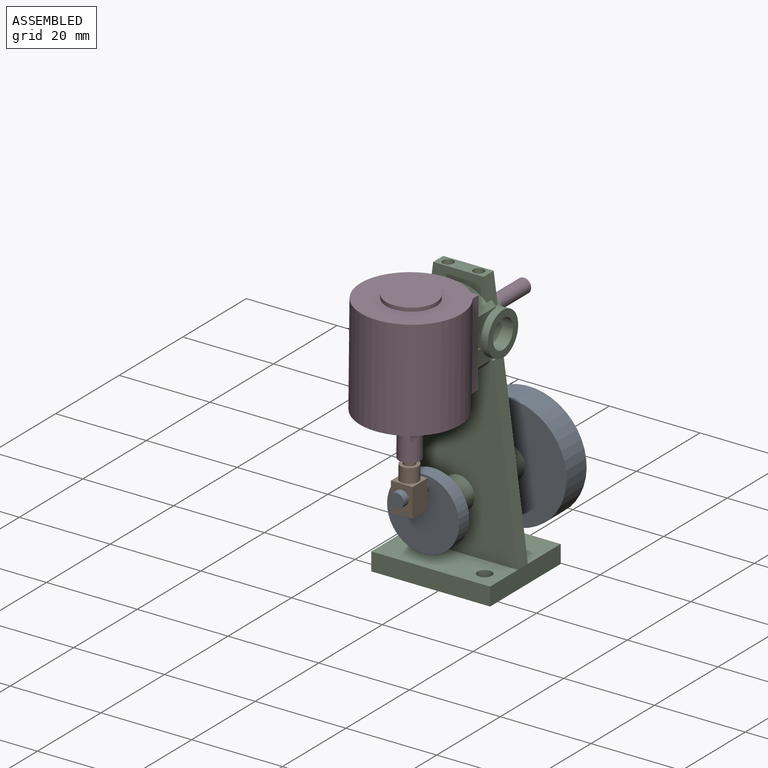
[diagram: assembled view]
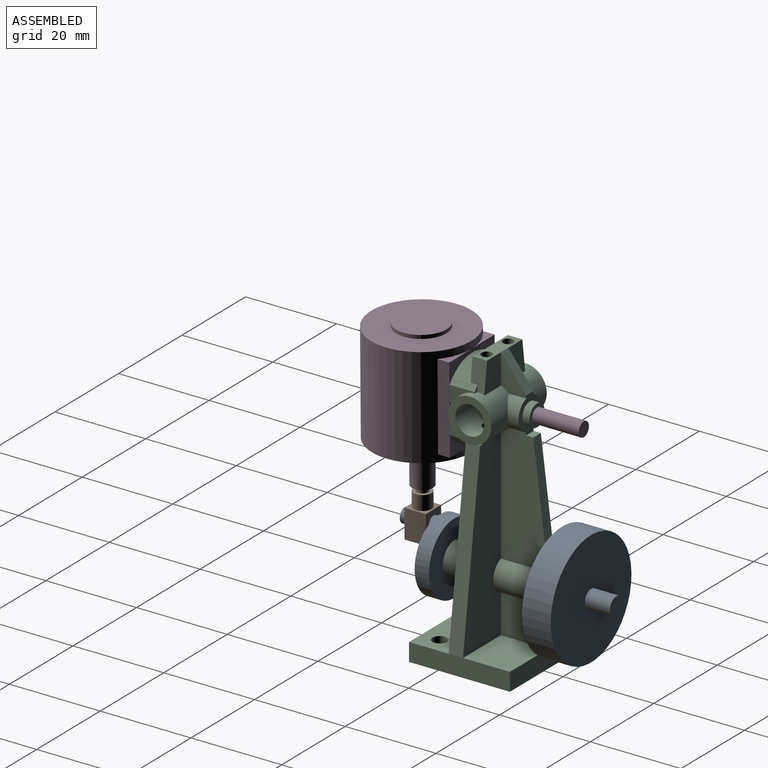
[diagram: assembled view, second angle]
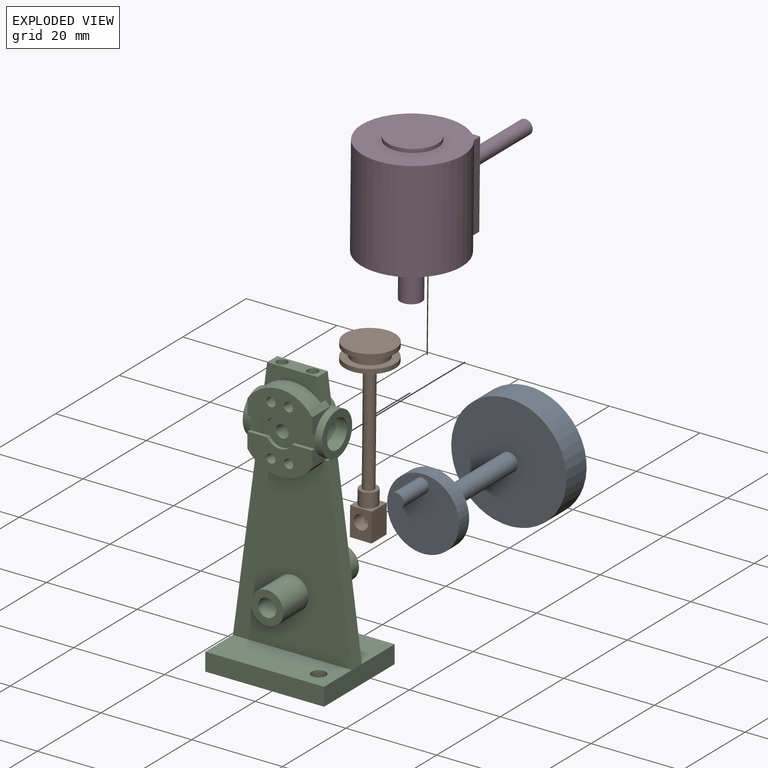
[diagram: exploded view]
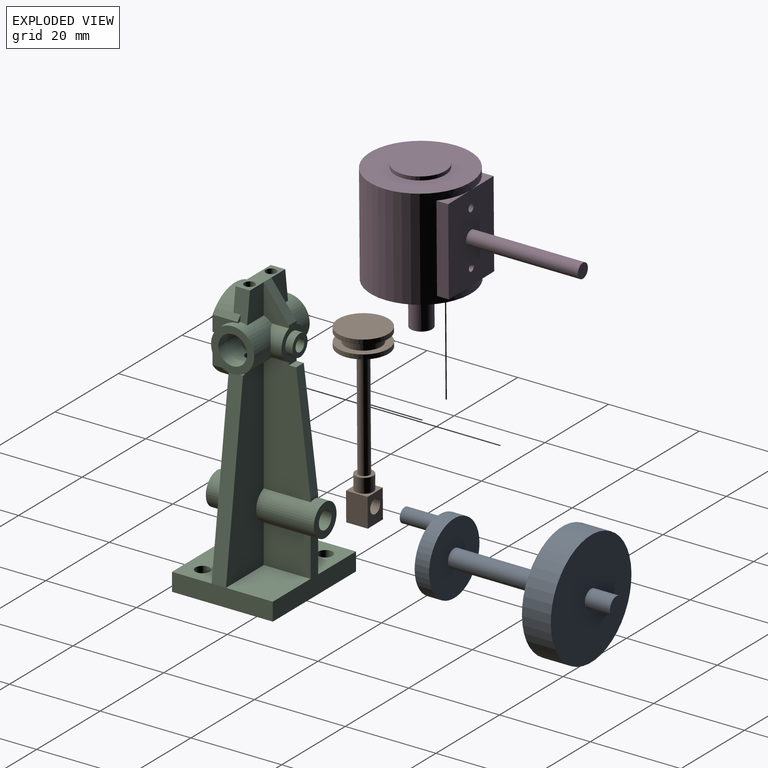
[diagram: exploded view, second angle]
ASSEMBLY  parts=4 mates=3
PART A: 11 faces, bbox 25.4x46.8x25.4 mm
  f0: cylinder r=1.98mm len=23.81mm, axis (0,1,0), area 296.9mm2, adj f3,f7
  f1: cylinder r=7.94mm len=15.88mm, axis (0,1,0), area 158.3mm2, adj f2,f3
  f2: plane 15.88x15.88mm, normal (0,-1,0), area 190mm2, adj f1,f4
  f3: plane 15.88x15.88mm, normal (0,1,0), area 185.6mm2, adj f0,f1
  f4: cylinder r=1.59mm len=7.94mm, axis (0,1,0), area 79.2mm2, adj f2,f5
  f5: plane 3.18x3.18mm, normal (0,-1,0), area 7.9mm2, adj f4
  f6: cylinder r=12.7mm len=25.4mm, axis (0,1,0), area 506.7mm2, adj f7,f8
  f7: plane 25.4x25.4mm, normal (0,-1,0), area 494.3mm2, adj f0,f6
  f8: plane 25.4x25.4mm, normal (0,1,0), area 494.3mm2, adj f6,f10
  f9: plane 3.97x3.97mm, normal (0,1,0), area 12.4mm2, adj f10
  f10: cylinder r=1.98mm len=5.56mm, axis (0,1,0), area 69.3mm2, adj f8,f9
PART B: 17 faces, bbox 11.1x11.1x38.9 mm
  f0: plane 6.35x4.76mm, normal (0,1,0), area 22.3mm2, adj f1,f3,f4,f5,f16
  f1: plane 6.35x4.76mm, normal (-1,0,0), area 30.2mm2, adj f0,f2,f4,f5
  f2: plane 6.35x4.76mm, normal (0,-1,0), area 22.3mm2, adj f1,f3,f4,f5,f16
  f3: plane 6.35x4.76mm, normal (1,0,0), area 30.2mm2, adj f0,f2,f4,f5
  f4: plane 4.76x4.76mm, normal (0,0,1), area 10.3mm2, adj f0,f1,f2,f3,f6
  f5: plane 4.76x4.76mm, normal (0,0,-1), area 22.7mm2, adj f0,f1,f2,f3
  f6: cylinder r=1.98mm len=3.97mm, axis (0,0,-1), area 39.6mm2, adj f4,f7
  f7: plane 3.97x3.97mm, normal (0,0,1), area 7.5mm2, adj f6,f8
  f8: cylinder r=1.24mm len=25.4mm, axis (0,0,-1), area 198.6mm2, adj f7,f11
  f9: cylinder r=5.56mm len=11.11mm, axis (0,0,-1), area 34.6mm2, adj f10,f15
  f10: plane 11.11x11.11mm, normal (0,0,1), area 97mm2, adj f9
  f11: plane 11.11x11.11mm, normal (0,0,-1), area 92.1mm2, adj f8,f12
  f12: cylinder r=5.56mm len=11.11mm, axis (0,0,-1), area 34.6mm2, adj f11,f13
  f13: plane 11.11x11.11mm, normal (0,0,1), area 47.5mm2, adj f12,f14
  f14: cylinder r=3.97mm len=7.94mm, axis (0,0,-1), area 49.5mm2, adj f13,f15
  f15: plane 11.11x11.11mm, normal (0,0,-1), area 47.5mm2, adj f9,f14
  f16: cylinder r=1.59mm len=4.76mm, axis (0,-1,0), area 47.5mm2, adj f0,f2
PART C: 89 faces, bbox 26.2x24.6x60.3 mm
  f0: cylinder r=3.57mm len=12.7mm, axis (0,-1,0), area 232.9mm2, adj f6,f9,f31,f43,f44,f45,f46,f47
  f1: cylinder r=1.98mm len=23.81mm, axis (0,-1,0), area 294.9mm2, adj f42,f43,f88
  f2: cylinder r=0.99mm len=4.13mm, axis (0,0,1), area 22.2mm2, adj f67,f81,f82,f86
  f3: cylinder r=0.99mm len=3.33mm, axis (0,0,1), area 17.4mm2, adj f4,f73,f77,f78,f84
  f4: cylinder r=0.99mm len=0.19mm, axis (0,0,1), area 0mm2, adj f3,f73,f77
  f5: plane 6.62x5.25mm, normal (0,1,0), area 31.8mm2, adj f17,f28,f39,f64
  f6: plane 40.75x11.91mm, normal (0,1,0), area 362.1mm2, adj f0,f24,f30,f44,f48,f61,f62,f64
  f7: plane 1.36x0.92mm, normal (0,1,0), area 0.6mm2, adj f14,f15,f17,f64
  f8: plane 6.62x5.25mm, normal (0,1,0), area 31.8mm2, adj f18,f27,f39,f65
  f9: plane 40.75x11.91mm, normal (0,1,0), area 362.1mm2, adj f0,f25,f29,f45,f47,f59,f60,f65
  f10: cylinder r=3.57mm len=6.74mm, axis (0,-1,0), area 25.8mm2, adj f28,f48,f51,f64
  f11: cylinder r=3.57mm len=6.74mm, axis (0,-1,0), area 25.8mm2, adj f27,f47,f51,f65
  f12: plane 1.36x0.92mm, normal (0,1,0), area 0.6mm2, adj f13,f15,f18,f65
  f13: plane 5.56x5.02mm, normal (1,0,0), area 8.8mm2, adj f12,f15,f16,f20,f56,f65
  f14: plane 5.56x5.02mm, normal (-1,0,0), area 8.8mm2, adj f7,f15,f16,f20,f21,f64
  f15: cylinder r=8.73mm len=14.29mm, axis (0,1,0), area 71mm2, adj f7,f12,f13,f14,f16,f17,f18,f26
  f16: plane 14.29x7.14mm, normal (0,-1,0), area 73.9mm2, adj f13,f14,f15,f21,f56,f58,f75,f81
  f17: plane 6.64x3.19mm, normal (-0.99,0,0.13), area 18.3mm2, adj f5,f7,f15,f26,f39,f64
  f18: plane 6.64x3.19mm, normal (0.99,0,0.13), area 18.3mm2, adj f8,f12,f15,f26,f39,f65
  f19: plane 14.29x7.14mm, normal (0,-1,0), area 73.9mm2, adj f22,f23,f55,f57,f59,f61,f77,f79
  f20: plane 14.29x6.35mm, normal (0,-1,0), area 51.7mm2, adj f13,f14,f21,f22,f55,f56,f57,f58
  f21: plane 4.39x0.79mm, normal (0,0,-1), area 3.5mm2, adj f14,f16,f20,f58
  f22: plane 4.39x0.79mm, normal (0,0,1), area 3.5mm2, adj f19,f20,f57,f61
  f23: cylinder r=8.73mm len=14.29mm, axis (0,1,0), area 66.4mm2, adj f19,f40,f59,f61
  f24: plane 40.22x5.38mm, normal (-0.99,0,0.13), area 128.8mm2, adj f6,f32,f40,f62
  f25: plane 40.22x5.38mm, normal (0.99,0,0.13), area 128.8mm2, adj f9,f36,f40,f60
  f26: plane 12.45x4.99mm, normal (0,-1,0), area 36.4mm2, adj f15,f17,f18,f39
  f27: plane 7.75x5.56mm, normal (1,0,0), area 22mm2, adj f8,f11,f51,f52,f65
  f28: plane 7.75x5.56mm, normal (-1,0,0), area 22mm2, adj f5,f10,f51,f52,f64
  f29: plane 11.91x10.32mm, normal (0,0,1), area 122.9mm2, adj f9,f31,f36,f45
  f30: plane 11.91x10.32mm, normal (0,0,1), area 114.9mm2, adj f6,f31,f32,f34,f44
  f31: plane 26.19x12.51mm, normal (0,1,0), area 124mm2, adj f0,f29,f30,f32,f36,f38,f44,f45
  f32: plane 22.23x3.97mm, normal (-1,0,0), area 88.2mm2, adj f24,f30,f31,f33,f37,f38
  f33: plane 26.19x3.97mm, normal (0,-1,0), area 104mm2, adj f32,f36,f37,f38
  f34: cylinder r=1.59mm len=3.97mm, axis (0,0,-1), area 39.6mm2, adj f30,f38
  f35: cylinder r=1.59mm len=3.97mm, axis (0,0,-1), area 39.6mm2, adj f37,f38
  f36: plane 22.23x3.97mm, normal (1,0,0), area 88.2mm2, adj f25,f29,f31,f33,f37,f38
  f37: plane 26.19x8.73mm, normal (0,0,1), area 220.8mm2, adj f32,f33,f35,f36,f40
  f38: plane 26.19x22.23mm, normal (0,0,-1), area 566.3mm2, adj f31,f32,f33,f34,f35,f36
  f39: plane 11.11x3.18mm, normal (0,0,1), area 26.4mm2, adj f5,f8,f17,f18,f26,f52,f68,f70
  f40: plane 40.22x26.19mm, normal (0,-1,0), area 759.9mm2, adj f23,f24,f25,f37,f41,f60,f62
  f41: cylinder r=3.57mm len=7.94mm, axis (0,1,0), area 178.1mm2, adj f40,f42
  f42: plane 7.14x7.14mm, normal (0,-1,0), area 27.7mm2, adj f1,f41
  f43: plane 7.14x7.14mm, normal (0,1,0), area 27.7mm2, adj f0,f1
  f44: plane 10.32x8.54mm, normal (-1,0,0), area 88.1mm2, adj f0,f6,f30,f31
  f45: plane 10.32x8.54mm, normal (1,0,0), area 88.1mm2, adj f0,f9,f29,f31
  f46: plane 2.38x0.6mm, normal (0,1,0), area 1.1mm2, adj f0,f47,f48,f49
  f47: plane 26.6x10.32mm, normal (1,0,0), area 230.2mm2, adj f0,f9,f11,f46,f49,f50,f51,f65
  f48: plane 26.6x10.32mm, normal (-1,0,0), area 230.2mm2, adj f0,f6,f10,f46,f49,f50,f51,f64
  f49: plane 25.4x3.18mm, normal (0,0.99,0.12), area 61mm2, adj f46,f47,f48,f50
  f50: plane 2.38x1.59mm, normal (0,0,1), area 3.8mm2, adj f47,f48,f49,f51
  f51: plane 7.94x7.14mm, normal (0,1,0), area 24.5mm2, adj f10,f11,f27,f28,f47,f48,f50,f52
  f52: plane 7.14x5.56mm, normal (0,0.79,0.61), area 21.6mm2, adj f27,f28,f39,f51
  f53: cylinder r=2.38mm len=4.76mm, axis (0,-1,0), area 23.8mm2, adj f51,f54
  f54: plane 4.76x4.76mm, normal (0,1,0), area 11.8mm2, adj f53,f83
  f55: plane 4.39x0.79mm, normal (0,0,1), area 3.5mm2, adj f19,f20,f57,f59
  f56: plane 4.39x0.79mm, normal (0,0,-1), area 3.5mm2, adj f13,f16,f20,f58
  f57: cylinder r=3.17mm len=5.5mm, axis (0,-1,0), area 5.3mm2, adj f19,f20,f22,f55
  f58: cylinder r=3.17mm len=5.5mm, axis (0,-1,0), area 5.3mm2, adj f16,f20,f21,f56
  f59: plane 7.14x5.02mm, normal (1,0,0), area 9.4mm2, adj f9,f19,f20,f23,f55,f60,f65
  f60: plane 3.18x0.57mm, normal (0,0,1), area 1.8mm2, adj f9,f25,f40,f59
  f61: plane 7.14x5.02mm, normal (-1,0,0), area 9.4mm2, adj f6,f19,f20,f22,f23,f62,f64
  f62: plane 3.18x0.57mm, normal (0,0,1), area 1.8mm2, adj f6,f24,f40,f61
  f63: plane 9.53x9.53mm, normal (-1,0,0), area 39.6mm2, adj f64,f86
  f64: cylinder r=4.76mm len=9.53mm, axis (-1,0,0), area 106mm2, adj f5,f6,f7,f10,f14,f17,f28,f48
  f65: cylinder r=4.76mm len=9.53mm, axis (-1,0,0), area 106mm2, adj f8,f9,f11,f12,f13,f18,f27,f47
  f66: plane 9.53x9.53mm, normal (1,0,0), area 39.6mm2, adj f65,f84
  f67: plane 2.38x2.38mm, normal (0,0,1), area 1.4mm2, adj f2,f68
  f68: cylinder r=1.19mm len=3.97mm, axis (0,0,1), area 29.7mm2, adj f39,f67
  f69: plane 2.38x2.38mm, normal (0,0,1), area 1.4mm2, adj f70,f74
  f70: cylinder r=1.19mm len=3.97mm, axis (0,0,1), area 29.7mm2, adj f39,f69
  f71: plane 1.98x1.75mm, normal (0,0,1), area 2.9mm2, adj f72,f79
  f72: cylinder r=0.99mm len=3.33mm, axis (0,0,1), area 17.4mm2, adj f71,f79,f80,f86
  f73: plane 1.98x1.75mm, normal (0,0,1), area 2.9mm2, adj f3,f4,f77
  f74: cylinder r=0.99mm len=4.13mm, axis (0,0,1), area 22.2mm2, adj f69,f75,f76,f84
  f75: cylinder r=0.99mm len=6.35mm, axis (0,-1,0), area 36.5mm2, adj f16,f74,f76
  f76: plane 1.98x1.83mm, normal (0,-1,0), area 3mm2, adj f74,f75
  f77: cylinder r=0.99mm len=6.35mm, axis (0,-1,0), area 36.8mm2, adj f3,f4,f19,f73,f78
  f78: plane 1.98x1.83mm, normal (0,-1,0), area 3mm2, adj f3,f77
  f79: cylinder r=0.99mm len=6.35mm, axis (0,-1,0), area 36.8mm2, adj f19,f71,f72,f80
  f80: plane 1.98x1.83mm, normal (0,-1,0), area 3mm2, adj f72,f79
  f81: cylinder r=0.99mm len=6.35mm, axis (0,-1,0), area 36.5mm2, adj f2,f16,f82
  f82: plane 1.98x1.83mm, normal (0,-1,0), area 3mm2, adj f2,f81
  f83: cylinder r=1.38mm len=13.49mm, axis (0,-1,0), area 117.4mm2, adj f20,f54
  f84: cylinder r=3.17mm len=6.35mm, axis (1,0,0), area 120.4mm2, adj f3,f66,f74,f85
  f85: plane 6.35x6.35mm, normal (1,0,0), area 31.7mm2, adj f84
  f86: cylinder r=3.17mm len=6.35mm, axis (-1,0,0), area 120.4mm2, adj f2,f63,f72,f87
  f87: plane 6.35x6.35mm, normal (-1,0,0), area 31.7mm2, adj f86
  f88: cylinder r=0.79mm len=2.41mm, axis (-0.64,0,0.77), area 8.1mm2, adj f0,f1
PART D: 22 faces, bbox 22.3x46.9x32.6 mm
  f0: plane 7.14x2.6mm, normal (0,0,1), area 5.9mm2, adj f5,f9,f11
  f1: cylinder r=5.56mm len=17.46mm, axis (0,0,-1), area 605.5mm2, adj f15,f16,f17,f18
  f2: cylinder r=1.27mm len=11.91mm, axis (0,0,-1), area 95mm2, adj f4,f17
  f3: cylinder r=2.38mm len=9.53mm, axis (0,0,-1), area 142.5mm2, adj f4,f6
  f4: plane 4.76x4.76mm, normal (0,0,-1), area 12.7mm2, adj f2,f3
  f5: cylinder r=11.11mm len=22.23mm, axis (0,0,-1), area 1256.2mm2, adj f0,f6,f7,f8,f10,f11,f12,f19
  f6: plane 22.23x22.23mm, normal (0,0,-1), area 370.1mm2, adj f3,f5
  f7: plane 7.14x2.6mm, normal (0,0,-1), area 5.9mm2, adj f5,f9,f11
  f8: plane 7.14x2.6mm, normal (0,0,-1), area 5.9mm2, adj f5,f9,f10
  f9: plane 19.14x14.38mm, normal (0,-1,0), area 260.2mm2, adj f0,f7,f8,f10,f11,f12,f13,f15
  f10: plane 19.05x2.6mm, normal (1,0,0), area 49.5mm2, adj f5,f8,f9,f12
  f11: plane 19.05x2.6mm, normal (-1,0,0), area 49.5mm2, adj f0,f5,f7,f9
  f12: plane 7.14x2.6mm, normal (0,0,1), area 5.9mm2, adj f5,f9,f10
  f13: cylinder r=1.59mm len=24.61mm, axis (0,1,0), area 245.4mm2, adj f9,f14
  f14: plane 3.18x3.18mm, normal (0,-1,0), area 7.9mm2, adj f13
  f15: cylinder r=0.79mm len=6.38mm, axis (0,-0.97,-0.26), area 28.8mm2, adj f1,f9
  f16: cylinder r=0.79mm len=6.38mm, axis (0,0.97,-0.26), area 28.8mm2, adj f1,f9
  f17: plane 11.11x11.11mm, normal (0,0,1), area 91.9mm2, adj f1,f2
  f18: plane 11.11x11.11mm, normal (0,0,-1), area 97mm2, adj f1
  f19: plane 22.23x22.23mm, normal (0,0,1), area 291mm2, adj f5,f20
  f20: cylinder r=5.56mm len=11.11mm, axis (0,0,-1), area 27.7mm2, adj f19,f21
  f21: plane 11.11x11.11mm, normal (0,0,1), area 97mm2, adj f20
PLACE A rot(axis=(0,-1,0),3deg) t=(0,31.75,-33.34)mm
PLACE B rot(axis=(0,1,0),0.6deg) t=(-0.33,-11.11,-31.36)mm
PLACE C t=(0,5.56,-49.21)mm
PLACE D rot(axis=(0.01,0,1),180deg) t=(-0.22,-11.11,-20.64)mm
MATE revolute A.f1 <-> C.f0  axis (0,1,0) through (0,-3.97,-33.34)mm
MATE cylindrical B.f16 <-> A.f4  axis (0,-1,0) through (-0.29,-13.49,-27.79)mm
MATE cylindrical D.f3 <-> B.f6  axis (-0.01,0,-1) through (-0.22,-11.11,-20.64)mm
